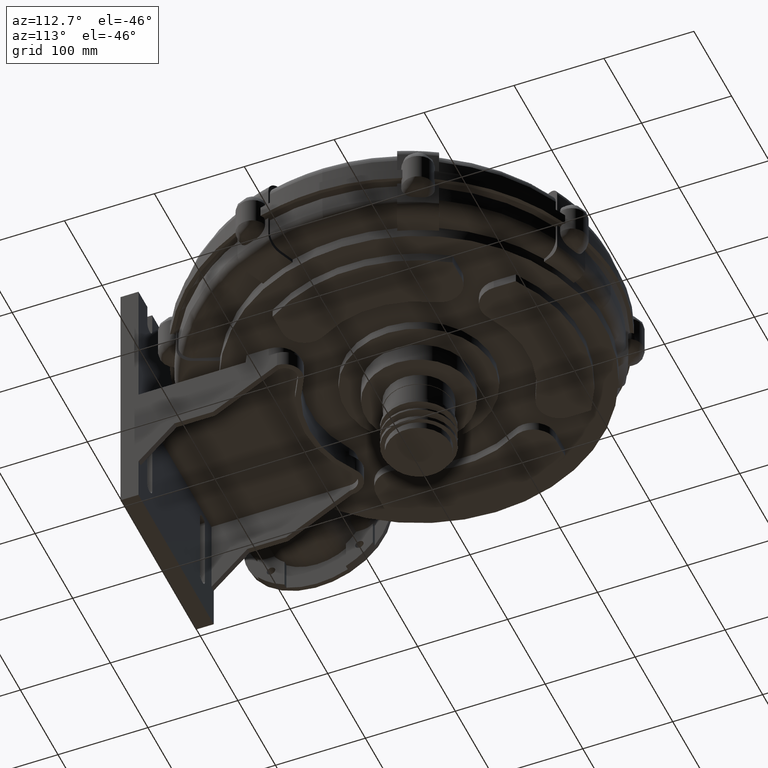
[diagram: clean part render]
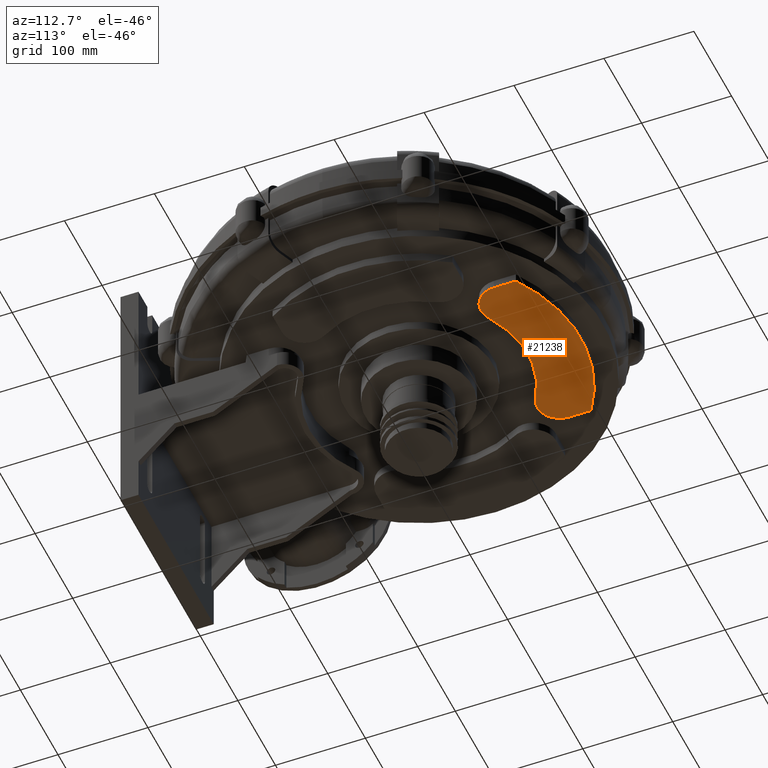
[diagram: same view with one face highlighted and labeled with its STEP entity id]
A machine part, auxiliary view. The second image highlights one B-rep face of the part: STEP entity #21238.
In plain terms, the highlighted planar face has unit normal (0, 0, 1).
Its self-contained STEP definition (entity closure, byte-faithful):
#21036=CARTESIAN_POINT('',(-62.15753424657543,88.814454371180034,17.999999999999563));
#21037=VERTEX_POINT('',#21036);
#21038=CARTESIAN_POINT('',(-100.00000000000006,110.26372180324202,17.999999999999588));
#21039=VERTEX_POINT('',#21038);
#21040=CARTESIAN_POINT('',(-75.000000000000085,110.26372180324202,17.999999999999563));
#21041=DIRECTION('',(1.298931E-017,-2.169452E-017,-1.0));
#21042=DIRECTION('',(-0.513698630136987,0.857970697282479,-2.528585E-017));
#21043=AXIS2_PLACEMENT_3D('',#21040,#21041,#21042);
#21044=CIRCLE('',#21043,25.0);
#21045=EDGE_CURVE('',#21037,#21039,#21044,.T.);
#21078=CARTESIAN_POINT('',(62.157534246575239,88.814454371180034,17.999999999999467));
#21079=VERTEX_POINT('',#21078);
#21080=CARTESIAN_POINT('',(-5.107026E-014,-14.999999999999991,17.999999999999574));
#21081=DIRECTION('',(-1.298931E-017,2.169452E-017,1.0));
#21082=DIRECTION('',(-0.513698630136986,0.857970697282479,-2.528585E-017));
#21083=AXIS2_PLACEMENT_3D('',#21080,#21081,#21082);
#21084=CIRCLE('',#21083,121.00000000000003);
#21085=EDGE_CURVE('',#21079,#21037,#21084,.T.);
#21111=CARTESIAN_POINT('',(99.999999999999986,110.26372180324199,17.999999999999421));
#21112=VERTEX_POINT('',#21111);
#21113=CARTESIAN_POINT('',(74.999999999999915,110.26372180324199,17.999999999999446));
#21114=DIRECTION('',(0.0,0.0,-1.0));
#21115=DIRECTION('',(-1.0,0.0,0.0));
#21116=AXIS2_PLACEMENT_3D('',#21113,#21114,#21115);
#21117=CIRCLE('',#21116,25.0);
#21118=EDGE_CURVE('',#21112,#21079,#21117,.T.);
#21144=CARTESIAN_POINT('',(99.999999999999986,134.66629547095764,17.99999999999941));
#21145=VERTEX_POINT('',#21144);
#21146=CARTESIAN_POINT('',(99.999999999999986,134.66629547095764,17.999999999999414));
#21147=DIRECTION('',(0.0,-1.0,0.0));
#21148=VECTOR('',#21147,24.402573667715629);
#21149=LINE('',#21146,#21148);
#21150=EDGE_CURVE('',#21145,#21112,#21149,.T.);
#21175=CARTESIAN_POINT('',(-100.00000000000006,134.66629547095766,17.999999999999574));
#21176=VERTEX_POINT('',#21175);
#21177=CARTESIAN_POINT('',(-5.107026E-014,-14.999999999999991,17.999999999999574));
#21178=DIRECTION('',(-1.235725E-017,1.849464E-017,-1.0));
#21179=DIRECTION('',(0.555555555555556,-0.831479419283098,-2.224306E-017));
#21180=AXIS2_PLACEMENT_3D('',#21177,#21178,#21179);
#21181=CIRCLE('',#21180,180.0);
#21182=EDGE_CURVE('',#21176,#21145,#21181,.T.);
#21208=CARTESIAN_POINT('',(-100.00000000000006,110.26372180324202,17.999999999999584));
#21209=DIRECTION('',(0.0,1.0,0.0));
#21210=VECTOR('',#21209,24.402573667715643);
#21211=LINE('',#21208,#21210);
#21212=EDGE_CURVE('',#21039,#21176,#21211,.T.);
#21225=CARTESIAN_POINT('',(-5.773160E-014,125.13186090162101,17.999999999999503));
#21226=DIRECTION('',(0.0,0.0,1.0));
#21227=DIRECTION('',(-1.0,0.0,0.0));
#21228=AXIS2_PLACEMENT_3D('',#21225,#21226,#21227);
#21229=PLANE('',#21228);
#21230=ORIENTED_EDGE('',*,*,#21118,.T.);
#21231=ORIENTED_EDGE('',*,*,#21085,.T.);
#21232=ORIENTED_EDGE('',*,*,#21045,.T.);
#21233=ORIENTED_EDGE('',*,*,#21212,.T.);
#21234=ORIENTED_EDGE('',*,*,#21182,.T.);
#21235=ORIENTED_EDGE('',*,*,#21150,.T.);
#21236=EDGE_LOOP('',(#21230,#21231,#21232,#21233,#21234,#21235));
#21237=FACE_OUTER_BOUND('',#21236,.T.);
#21238=ADVANCED_FACE('',(#21237),#21229,.F.);